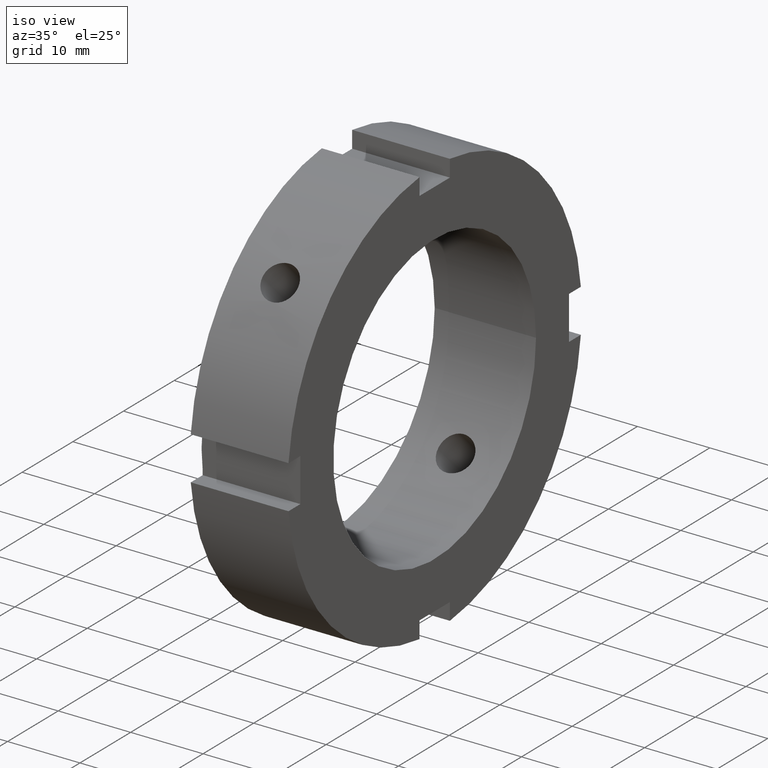
[diagram: clean part render]
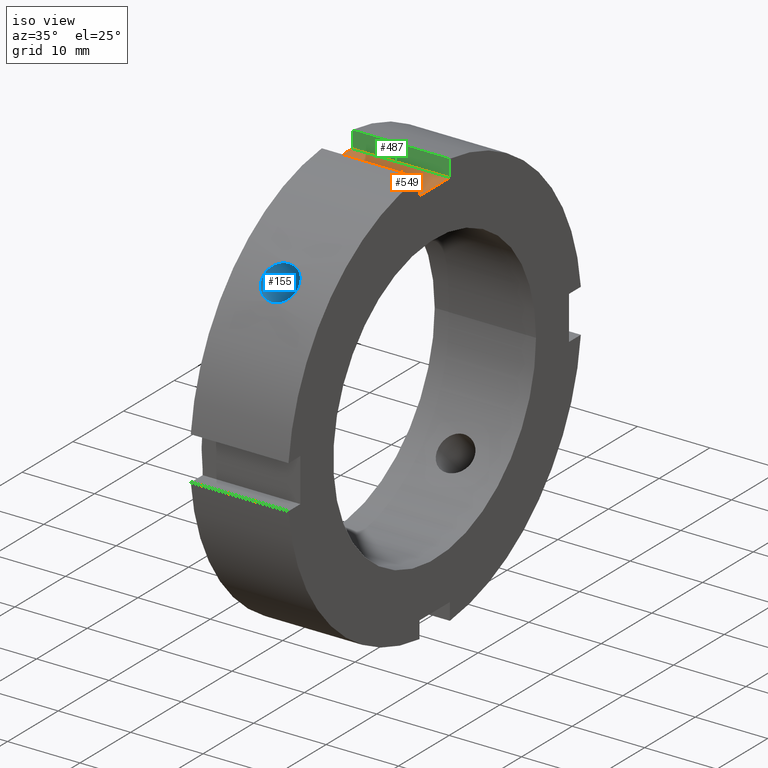
[diagram: same view with three faces highlighted in distinct colors, each labeled with its STEP entity id]
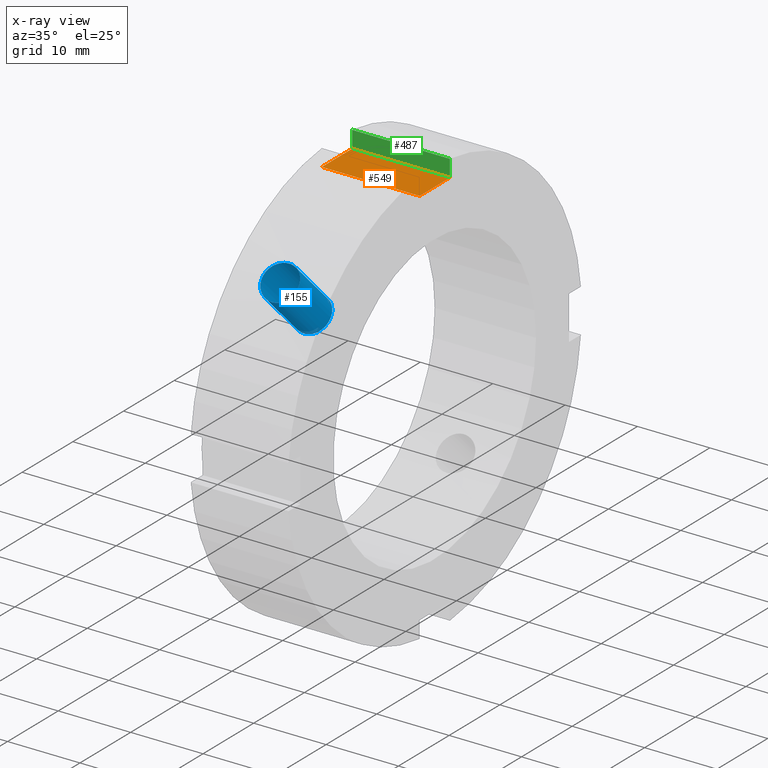
[diagram: x-ray of the same camera — body ghosted, the three highlighted faces saturated]
A machine part, iso view with three faces highlighted in distinct colors.
The next image is the same camera in x-ray (body ghosted, the three faces saturated) — at least one of them is partly hidden behind the body in this view.
Their STEP definitions:

[orange] entity #549 — the highlighted planar face has unit normal (0, 0, -1).
#453=CARTESIAN_POINT('',(0.499999999999994,3.000000000000001,26.500000000000004));
#454=VERTEX_POINT('',#453);
#463=CARTESIAN_POINT('',(13.999999999999995,3.000000000000001,26.500000000000004));
#464=VERTEX_POINT('',#463);
#465=CARTESIAN_POINT('',(13.999999999999995,3.000000000000001,26.500000000000004));
#466=DIRECTION('',(-1.0,0.0,0.0));
#467=VECTOR('',#466,13.500000000000000);
#468=LINE('',#465,#467);
#469=EDGE_CURVE('',#464,#454,#468,.T.);
#495=CARTESIAN_POINT('',(0.499999999999994,-2.999999999999998,26.500000000000004));
#496=VERTEX_POINT('',#495);
#511=CARTESIAN_POINT('',(13.999999999999995,-2.999999999999998,26.500000000000004));
#512=VERTEX_POINT('',#511);
#519=CARTESIAN_POINT('',(13.999999999999995,-2.999999999999998,26.500000000000004));
#520=DIRECTION('',(-1.0,0.0,0.0));
#521=VECTOR('',#520,13.500000000000000);
#522=LINE('',#519,#521);
#523=EDGE_CURVE('',#512,#496,#522,.T.);
#528=CARTESIAN_POINT('',(13.999999999999995,-2.999999999999998,26.500000000000004));
#529=DIRECTION('',(0.0,0.0,-1.0));
#530=DIRECTION('',(0.0,1.0,0.0));
#531=AXIS2_PLACEMENT_3D('',#528,#529,#530);
#532=PLANE('',#531);
#533=CARTESIAN_POINT('',(0.499999999999993,-3.0,26.500000000000004));
#534=DIRECTION('',(0.0,1.0,0.0));
#535=VECTOR('',#534,6.0);
#536=LINE('',#533,#535);
#537=EDGE_CURVE('',#496,#454,#536,.T.);
#538=ORIENTED_EDGE('',*,*,#537,.F.);
#539=ORIENTED_EDGE('',*,*,#523,.F.);
#540=CARTESIAN_POINT('',(13.999999999999995,3.0,26.500000000000004));
#541=DIRECTION('',(0.0,-1.0,0.0));
#542=VECTOR('',#541,5.999999999999998);
#543=LINE('',#540,#542);
#544=EDGE_CURVE('',#464,#512,#543,.T.);
#545=ORIENTED_EDGE('',*,*,#544,.F.);
#546=ORIENTED_EDGE('',*,*,#469,.T.);
#547=EDGE_LOOP('',(#538,#539,#545,#546));
#548=FACE_OUTER_BOUND('',#547,.T.);
#549=ADVANCED_FACE('',(#548),#532,.F.);

[blue] entity #155 — the highlighted cylindrical surface (bore or boss wall) has radius 2.4585 mm, axis along (0, -0.7071, 0.7071).
#68=CARTESIAN_POINT('',(6.999999999999994,-58.532042506647585,58.532042506647592));
#69=DIRECTION('',(0.0,-0.707106781186547,0.707106781186548));
#70=DIRECTION('',(1.0,0.0,0.0));
#71=AXIS2_PLACEMENT_3D('',#68,#69,#70);
#72=CYLINDRICAL_SURFACE('',#71,2.458500000000000);
#73=CARTESIAN_POINT('',(6.999999999999994,-22.170697687145413,18.693853644051167));
#74=VERTEX_POINT('',#73);
#75=CARTESIAN_POINT('',(6.999999999999994,-22.170697687145413,18.693853644051163));
#76=CARTESIAN_POINT('',(6.691145890738701,-22.170697687145413,18.693853644051163));
#77=CARTESIAN_POINT('',(6.361806790689388,-22.130892456067880,18.741383076766233));
#78=CARTESIAN_POINT('',(5.756127253682855,-21.967387836656989,18.932768210612167));
#79=CARTESIAN_POINT('',(5.479774174623103,-21.843491900784542,19.076415880902378));
#80=CARTESIAN_POINT('',(5.043382164885140,-21.553447231292648,19.403522710093156));
#81=CARTESIAN_POINT('',(4.854199969709036,-21.367896336246105,19.608794326285167));
#82=CARTESIAN_POINT('',(4.603254792323062,-20.953520604676491,20.050979602881270));
#83=CARTESIAN_POINT('',(4.541499999999994,-20.724489106518558,20.287704202301203));
#84=CARTESIAN_POINT('',(4.541499999999994,-20.287704202301200,20.724489106518561));
#85=CARTESIAN_POINT('',(4.603254792323060,-20.050979602881270,20.953520604676502));
#86=CARTESIAN_POINT('',(4.854199969709038,-19.608794326285160,21.367896336246112));
#87=CARTESIAN_POINT('',(5.043382164885141,-19.403522710093153,21.553447231292651));
#88=CARTESIAN_POINT('',(5.479774174623104,-19.076415880902371,21.843491900784549));
#89=CARTESIAN_POINT('',(5.756127253682855,-18.932768210612160,21.967387836656989));
#90=CARTESIAN_POINT('',(6.361806790689385,-18.741383076766226,22.130892456067880));
#91=CARTESIAN_POINT('',(6.691145890738702,-18.693853644051156,22.170697687145420));
#92=CARTESIAN_POINT('',(7.308854109261286,-18.693853644051156,22.170697687145420));
#93=CARTESIAN_POINT('',(7.638193209310603,-18.741383076766226,22.130892456067883));
#94=CARTESIAN_POINT('',(8.243872746317134,-18.932768210612160,21.967387836656993));
#95=CARTESIAN_POINT('',(8.520225825376887,-19.076415880902374,21.843491900784553));
#96=CARTESIAN_POINT('',(8.956617835114848,-19.403522710093153,21.553447231292651));
#97=CARTESIAN_POINT('',(9.145800030290950,-19.608794326285160,21.367896336246112));
#98=CARTESIAN_POINT('',(9.396745207676927,-20.050979602881270,20.953520604676502));
#99=CARTESIAN_POINT('',(9.458499999999994,-20.287704202301200,20.724489106518561));
#100=CARTESIAN_POINT('',(9.458499999999996,-20.724489106518558,20.287704202301203));
#101=CARTESIAN_POINT('',(9.396745207676926,-20.953520604676491,20.050979602881270));
#102=CARTESIAN_POINT('',(9.145800030290950,-21.367896336246105,19.608794326285167));
#103=CARTESIAN_POINT('',(8.956617835114848,-21.553447231292648,19.403522710093156));
#104=CARTESIAN_POINT('',(8.520225825376887,-21.843491900784549,19.076415880902378));
#105=CARTESIAN_POINT('',(8.243872746317134,-21.967387836656993,18.932768210612164));
#106=CARTESIAN_POINT('',(7.638193209310601,-22.130892456067883,18.741383076766226));
#107=CARTESIAN_POINT('',(7.308854109261288,-22.170697687145413,18.693853644051163));
#108=CARTESIAN_POINT('',(6.999999999999995,-22.170697687145413,18.693853644051163));
#109=B_SPLINE_CURVE_WITH_KNOTS('',3,(#75,#76,#77,#78,#79,#80,#81,#82,#83,#84,#85,#86,#87,#88,#89,#90,#91,#92,#93,#94,#95,#96,#97,#98,#99,#100,#101,#102,#103,#104,#105,#106,#107,#108),.UNSPECIFIED.,.T.,.U.,(4,2,2,2,2,2,2,2,2,2,2,2,2,2,2,2,4),(0.0,0.092656232778388,0.185312465556775,0.277968535864379,0.370624606171983,0.463280676479587,0.555936746787191,0.648592979565578,0.741249212343966,0.833905445122354,0.926561677900741,1.019217748208345,1.111873818515949,1.204529888823553,1.297185959131157,1.389842191909544,1.482498424687932),.UNSPECIFIED.);
#110=EDGE_CURVE('',#74,#74,#109,.T.);
#111=ORIENTED_EDGE('',*,*,#110,.F.);
#112=EDGE_LOOP('',(#111));
#113=FACE_OUTER_BOUND('',#112,.T.);
#114=CARTESIAN_POINT('',(6.999999999999994,-15.773303170847964,12.296459127753714));
#115=VERTEX_POINT('',#114);
#116=CARTESIAN_POINT('',(6.999999999999993,-15.773303170847964,12.296459127753712));
#117=CARTESIAN_POINT('',(7.309031728745285,-15.773303170847964,12.296459127753712));
#118=CARTESIAN_POINT('',(7.638446184143283,-15.735216795334894,12.345805275889177));
#119=CARTESIAN_POINT('',(8.244075995513189,-15.578021834674828,12.543571705065307));
#120=CARTESIAN_POINT('',(8.520318291020635,-15.458626948454949,12.691681694740225));
#121=CARTESIAN_POINT('',(8.956524048848388,-15.177095052645635,13.027037897636152));
#122=CARTESIAN_POINT('',(9.145679894707628,-14.996071801450379,13.236681295095760));
#123=CARTESIAN_POINT('',(9.396676480061615,-14.588002032378913,13.685104964261869));
#124=CARTESIAN_POINT('',(9.458499999999994,-14.360652348264829,13.923618899197070));
#125=CARTESIAN_POINT('',(9.458499999999994,-13.923618899197066,14.360652348264832));
#126=CARTESIAN_POINT('',(9.396676480061615,-13.685104964261868,14.588002032378915));
#127=CARTESIAN_POINT('',(9.145679894707628,-13.236681295095758,14.996071801450380));
#128=CARTESIAN_POINT('',(8.956524048848388,-13.027037897636141,15.177095052645635));
#129=CARTESIAN_POINT('',(8.520318291020635,-12.691681694740218,15.458626948454953));
#130=CARTESIAN_POINT('',(8.244075995513192,-12.543571705065302,15.578021834674834));
#131=CARTESIAN_POINT('',(7.638446184143287,-12.345805275889166,15.735216795334901));
#132=CARTESIAN_POINT('',(7.309031728745284,-12.296459127753705,15.773303170847967));
#133=CARTESIAN_POINT('',(6.690968271254704,-12.296459127753705,15.773303170847967));
#134=CARTESIAN_POINT('',(6.361553815856702,-12.345805275889168,15.735216795334901));
#135=CARTESIAN_POINT('',(5.755924004486797,-12.543571705065300,15.578021834674834));
#136=CARTESIAN_POINT('',(5.479681708979354,-12.691681694740218,15.458626948454953));
#137=CARTESIAN_POINT('',(5.043475951151599,-13.027037897636141,15.177095052645635));
#138=CARTESIAN_POINT('',(4.854320105292361,-13.236681295095758,14.996071801450380));
#139=CARTESIAN_POINT('',(4.603323519938375,-13.685104964261868,14.588002032378915));
#140=CARTESIAN_POINT('',(4.541499999999994,-13.923618899197066,14.360652348264832));
#141=CARTESIAN_POINT('',(4.541499999999994,-14.360652348264829,13.923618899197070));
#142=CARTESIAN_POINT('',(4.603323519938372,-14.588002032378910,13.685104964261871));
#143=CARTESIAN_POINT('',(4.854320105292358,-14.996071801450377,13.236681295095762));
#144=CARTESIAN_POINT('',(5.043475951151599,-15.177095052645635,13.027037897636152));
#145=CARTESIAN_POINT('',(5.479681708979355,-15.458626948454949,12.691681694740225));
#146=CARTESIAN_POINT('',(5.755924004486800,-15.578021834674832,12.543571705065307));
#147=CARTESIAN_POINT('',(6.361553815856706,-15.735216795334896,12.345805275889177));
#148=CARTESIAN_POINT('',(6.690968271254702,-15.773303170847964,12.296459127753712));
#149=CARTESIAN_POINT('',(6.999999999999993,-15.773303170847964,12.296459127753712));
#150=B_SPLINE_CURVE_WITH_KNOTS('',3,(#116,#117,#118,#119,#120,#121,#122,#123,#124,#125,#126,#127,#128,#129,#130,#131,#132,#133,#134,#135,#136,#137,#138,#139,#140,#141,#142,#143,#144,#145,#146,#147,#148,#149),.UNSPECIFIED.,.T.,.U.,(4,2,2,2,2,2,2,2,2,2,2,2,2,2,2,2,4),(0.0,0.092709518623587,0.185419037247174,0.278127831879523,0.370836626511871,0.463545421144219,0.556254215776568,0.648963734400155,0.741673253023742,0.834382771647329,0.927092290270916,1.019801084903265,1.112509879535613,1.205218674167962,1.297927468800310,1.390636987423897,1.483346506047484),.UNSPECIFIED.);
#151=EDGE_CURVE('',#115,#115,#150,.T.);
#152=ORIENTED_EDGE('',*,*,#151,.F.);
#153=EDGE_LOOP('',(#152));
#154=FACE_BOUND('',#153,.T.);
#155=ADVANCED_FACE('',(#113,#154),#72,.F.);

[green] entity #487 — the highlighted planar face has unit normal (0, 1, 0).
#448=CARTESIAN_POINT('',(13.999999999999995,3.000000000000001,26.500000000000004));
#449=DIRECTION('',(0.0,1.0,0.0));
#450=DIRECTION('',(-1.0,0.0,0.0));
#451=AXIS2_PLACEMENT_3D('',#448,#449,#450);
#452=PLANE('',#451);
#453=CARTESIAN_POINT('',(0.499999999999994,3.000000000000001,26.500000000000004));
#454=VERTEX_POINT('',#453);
#455=CARTESIAN_POINT('',(0.499999999999994,3.000000000000001,28.844410203711917));
#456=VERTEX_POINT('',#455);
#457=CARTESIAN_POINT('',(0.499999999999993,3.000000000000004,26.500000000000004));
#458=DIRECTION('',(0.0,0.0,1.0));
#459=VECTOR('',#458,2.344410203711913);
#460=LINE('',#457,#459);
#461=EDGE_CURVE('',#454,#456,#460,.T.);
#462=ORIENTED_EDGE('',*,*,#461,.F.);
#463=CARTESIAN_POINT('',(13.999999999999995,3.000000000000001,26.500000000000004));
#464=VERTEX_POINT('',#463);
#465=CARTESIAN_POINT('',(13.999999999999995,3.000000000000001,26.500000000000004));
#466=DIRECTION('',(-1.0,0.0,0.0));
#467=VECTOR('',#466,13.500000000000000);
#468=LINE('',#465,#467);
#469=EDGE_CURVE('',#464,#454,#468,.T.);
#470=ORIENTED_EDGE('',*,*,#469,.F.);
#471=CARTESIAN_POINT('',(13.999999999999995,3.000000000000001,28.844410203711917));
#472=VERTEX_POINT('',#471);
#473=CARTESIAN_POINT('',(13.999999999999995,3.000000000000004,28.844410203711917));
#474=DIRECTION('',(0.0,0.0,-1.0));
#475=VECTOR('',#474,2.344410203711913);
#476=LINE('',#473,#475);
#477=EDGE_CURVE('',#472,#464,#476,.T.);
#478=ORIENTED_EDGE('',*,*,#477,.F.);
#479=CARTESIAN_POINT('',(0.499999999999994,3.000000000000002,28.844410203711917));
#480=DIRECTION('',(1.0,0.0,0.0));
#481=VECTOR('',#480,13.500000000000000);
#482=LINE('',#479,#481);
#483=EDGE_CURVE('',#456,#472,#482,.T.);
#484=ORIENTED_EDGE('',*,*,#483,.F.);
#485=EDGE_LOOP('',(#462,#470,#478,#484));
#486=FACE_OUTER_BOUND('',#485,.T.);
#487=ADVANCED_FACE('',(#486),#452,.F.);